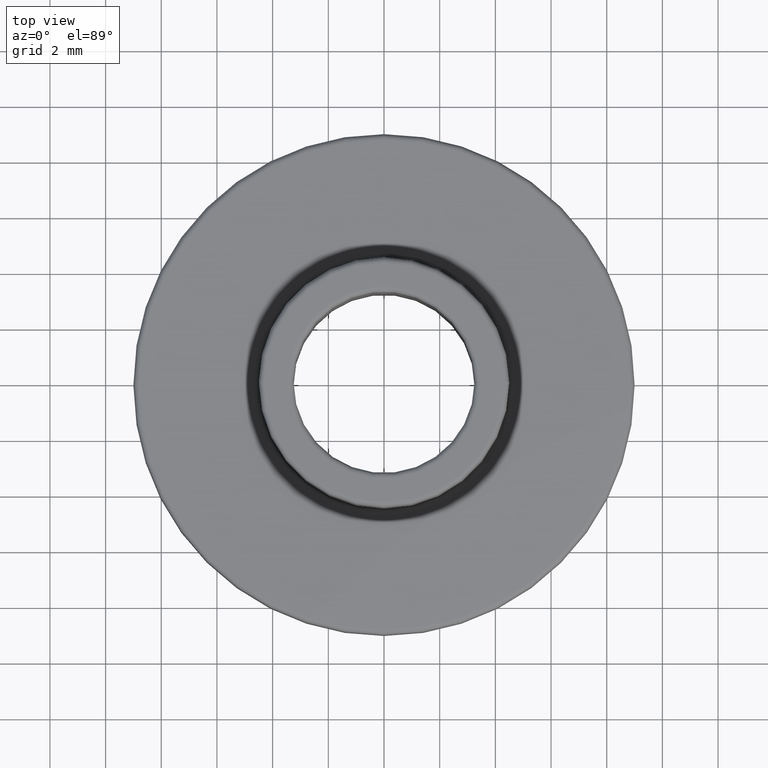
[diagram: clean part render]
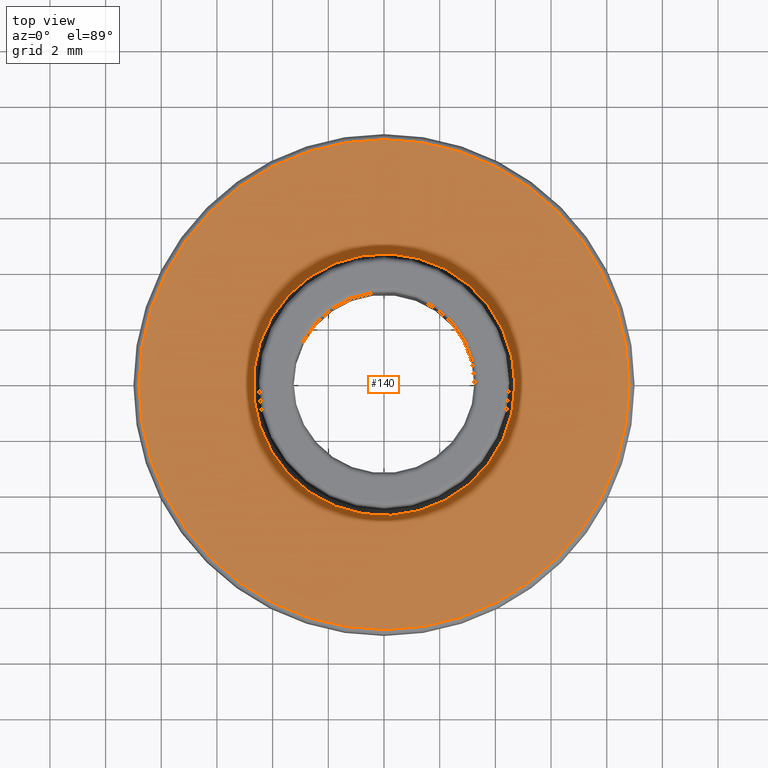
[diagram: same view with one face highlighted and labeled with its STEP entity id]
A machine part, top view. The second image highlights one B-rep face of the part: STEP entity #140.
In plain terms, the highlighted planar face has unit normal (0, 0, 1).
Its self-contained STEP definition (entity closure, byte-faithful):
#19=PLANE('',#161);
#26=FACE_BOUND('',#56,.T.);
#38=FACE_OUTER_BOUND('',#55,.T.);
#55=EDGE_LOOP('',(#115));
#56=EDGE_LOOP('',(#116));
#74=CIRCLE('',#158,4.7);
#76=CIRCLE('',#162,8.8);
#86=VERTEX_POINT('',#238);
#88=VERTEX_POINT('',#244);
#98=EDGE_CURVE('',#86,#86,#74,.T.);
#100=EDGE_CURVE('',#88,#88,#76,.T.);
#115=ORIENTED_EDGE('',*,*,#100,.F.);
#116=ORIENTED_EDGE('',*,*,#98,.F.);
#140=ADVANCED_FACE('',(#38,#26),#19,.T.);
#158=AXIS2_PLACEMENT_3D('',#239,#193,#194);
#161=AXIS2_PLACEMENT_3D('',#243,#199,#200);
#162=AXIS2_PLACEMENT_3D('',#245,#201,#202);
#193=DIRECTION('center_axis',(0.,0.,1.));
#194=DIRECTION('ref_axis',(-1.,0.,0.));
#199=DIRECTION('center_axis',(0.,0.,1.));
#200=DIRECTION('ref_axis',(1.,0.,0.));
#201=DIRECTION('center_axis',(0.,0.,-1.));
#202=DIRECTION('ref_axis',(-1.,0.,0.));
#238=CARTESIAN_POINT('',(4.7,5.75583995599256E-16,0.));
#239=CARTESIAN_POINT('Origin',(0.,0.,0.));
#243=CARTESIAN_POINT('Origin',(-5.03042222760184E-16,2.05596856412066E-16,
0.));
#244=CARTESIAN_POINT('',(8.8,-1.07768918324967E-15,0.));
#245=CARTESIAN_POINT('Origin',(0.,0.,0.));